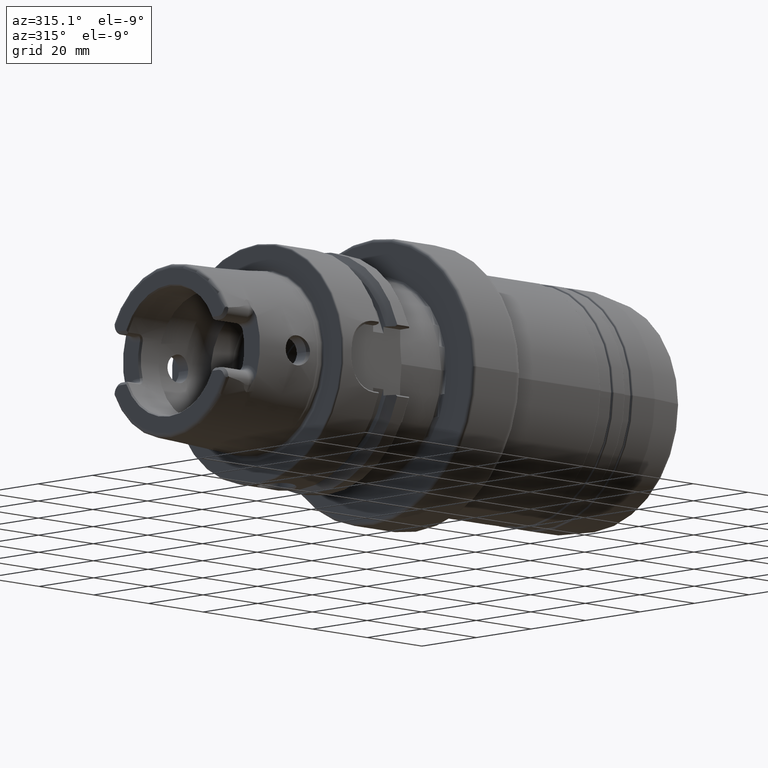
[diagram: clean part render]
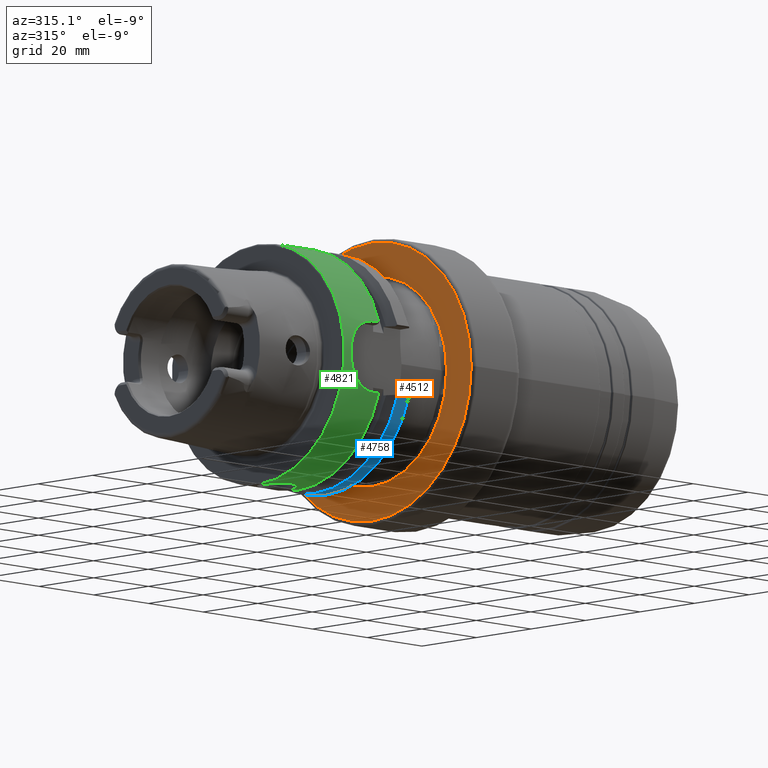
[diagram: same view with three faces highlighted in distinct colors, each labeled with its STEP entity id]
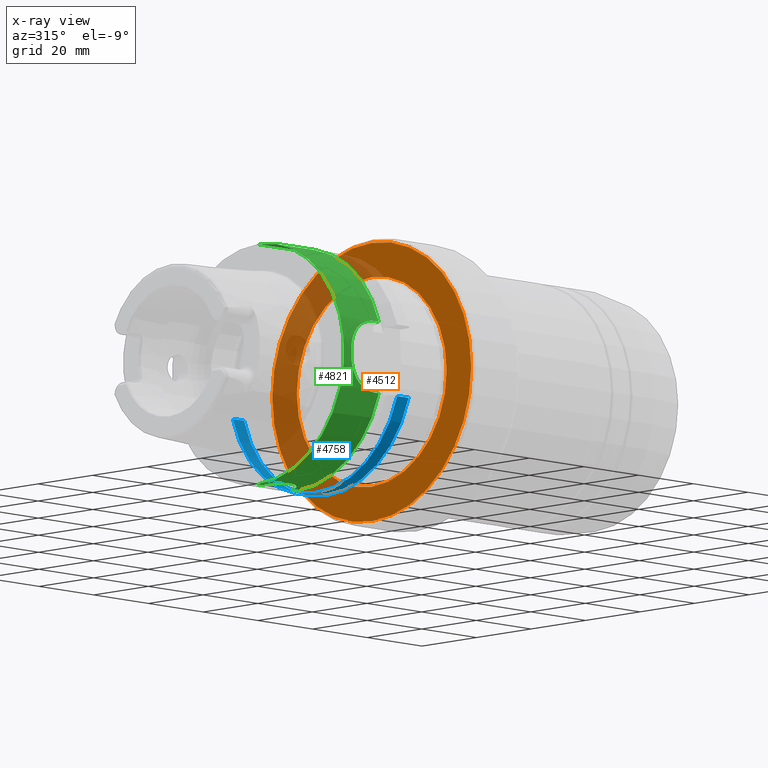
[diagram: x-ray of the same camera — body ghosted, the three highlighted faces saturated]
A machine part, auxiliary view with three faces highlighted in distinct colors.
The next image is the same camera in x-ray (body ghosted, the three faces saturated) — at least one of them is partly hidden behind the body in this view.
Their STEP definitions:

[orange] entity #4512 — the highlighted planar face has unit normal (1, 0, 0).
#759=CARTESIAN_POINT('',(1.653622047244E0,0.E0,0.E0));
#760=DIRECTION('',(-1.E0,0.E0,0.E0));
#761=DIRECTION('',(0.E0,1.E0,0.E0));
#762=AXIS2_PLACEMENT_3D('',#759,#760,#761);
#764=CARTESIAN_POINT('',(1.653622047244E0,0.E0,0.E0));
#765=DIRECTION('',(-1.E0,0.E0,0.E0));
#766=DIRECTION('',(0.E0,-1.E0,0.E0));
#767=AXIS2_PLACEMENT_3D('',#764,#765,#766);
#769=CARTESIAN_POINT('',(1.653622047244E0,0.E0,0.E0));
#770=DIRECTION('',(1.E0,0.E0,0.E0));
#771=DIRECTION('',(0.E0,-1.E0,0.E0));
#772=AXIS2_PLACEMENT_3D('',#769,#770,#771);
#774=CARTESIAN_POINT('',(1.653622047244E0,0.E0,0.E0));
#775=DIRECTION('',(1.E0,0.E0,0.E0));
#776=DIRECTION('',(0.E0,1.E0,0.E0));
#777=AXIS2_PLACEMENT_3D('',#774,#775,#776);
#3498=CARTESIAN_POINT('',(1.653622047244E0,1.082E0,0.E0));
#3499=CARTESIAN_POINT('',(1.653622047244E0,-1.082E0,0.E0));
#3500=VERTEX_POINT('',#3498);
#3501=VERTEX_POINT('',#3499);
#3510=CARTESIAN_POINT('',(1.653622047244E0,-1.437E0,0.E0));
#3511=CARTESIAN_POINT('',(1.653622047244E0,1.437E0,0.E0));
#3512=VERTEX_POINT('',#3510);
#3513=VERTEX_POINT('',#3511);
#4497=CARTESIAN_POINT('',(1.653622047244E0,0.E0,0.E0));
#4498=DIRECTION('',(1.E0,0.E0,0.E0));
#4499=DIRECTION('',(0.E0,-1.E0,0.E0));
#4500=AXIS2_PLACEMENT_3D('',#4497,#4498,#4499);
#4501=PLANE('',#4500);
#4502=ORIENTED_EDGE('',*,*,#4491,.T.);
#4503=ORIENTED_EDGE('',*,*,#4477,.T.);
#4504=EDGE_LOOP('',(#4502,#4503));
#4505=FACE_OUTER_BOUND('',#4504,.F.);
#4507=ORIENTED_EDGE('',*,*,#4506,.T.);
#4509=ORIENTED_EDGE('',*,*,#4508,.T.);
#4510=EDGE_LOOP('',(#4507,#4509));
#4511=FACE_BOUND('',#4510,.F.);
#4512=ADVANCED_FACE('',(#4505,#4511),#4501,.F.);
#763=CIRCLE('',#762,1.082E0);
#768=CIRCLE('',#767,1.082E0);
#773=CIRCLE('',#772,1.437E0);
#778=CIRCLE('',#777,1.437E0);
#4477=EDGE_CURVE('',#3513,#3512,#778,.T.);
#4491=EDGE_CURVE('',#3512,#3513,#773,.T.);
#4506=EDGE_CURVE('',#3500,#3501,#763,.T.);
#4508=EDGE_CURVE('',#3501,#3500,#768,.T.);

[blue] entity #4758 — the highlighted cylindrical surface (partial cylindrical patch) has radius 31.5 mm, axis along (1, 0, 0).
#916=CARTESIAN_POINT('',(1.003937007874E0,-1.183982137824E0,
-3.690215079028E-1));
#925=DIRECTION('',(1.E0,0.E0,0.E0));
#926=VECTOR('',#925,1.623031868470E-1);
#927=CARTESIAN_POINT('',(8.416338210270E-1,1.193014587568E0,
-3.386838789065E-1));
#928=LINE('',#927,#926);
#929=DIRECTION('',(1.E0,0.E0,0.E0));
#930=VECTOR('',#929,1.623031868470E-1);
#931=CARTESIAN_POINT('',(8.416338210270E-1,-1.183982137824E0,
-3.690215079028E-1));
#932=LINE('',#931,#930);
#1046=CARTESIAN_POINT('',(1.003937007874E0,0.E0,0.E0));
#1047=DIRECTION('',(-1.E0,0.E0,0.E0));
#1048=DIRECTION('',(0.E0,9.619863658485E-1,-2.730974769596E-1));
#1049=AXIS2_PLACEMENT_3D('',#1046,#1047,#1048);
#2534=CARTESIAN_POINT('',(8.416338210270E-1,1.193014587568E0,
-3.386838789065E-1));
#2564=CARTESIAN_POINT('',(8.416338210270E-1,-1.183982137824E0,
-3.690215079028E-1));
#2566=CARTESIAN_POINT('',(8.416338210270E-1,0.E0,0.E0));
#2567=DIRECTION('',(1.E0,0.E0,0.E0));
#2568=DIRECTION('',(0.E0,-9.547030571660E-1,-2.975602000232E-1));
#2569=AXIS2_PLACEMENT_3D('',#2566,#2567,#2568);
#3268=VERTEX_POINT('',#2564);
#3290=VERTEX_POINT('',#2534);
#3304=VERTEX_POINT('',#916);
#3314=CARTESIAN_POINT('',(1.003937007874E0,1.193014587568E0,
-3.386838789065E-1));
#3315=VERTEX_POINT('',#3314);
#4744=CARTESIAN_POINT('',(0.E0,0.E0,0.E0));
#4745=DIRECTION('',(1.E0,0.E0,0.E0));
#4746=DIRECTION('',(0.E0,0.E0,1.E0));
#4747=AXIS2_PLACEMENT_3D('',#4744,#4745,#4746);
#4748=CYLINDRICAL_SURFACE('',#4747,1.240157480315E0);
#4750=ORIENTED_EDGE('',*,*,#4749,.F.);
#4752=ORIENTED_EDGE('',*,*,#4751,.F.);
#4754=ORIENTED_EDGE('',*,*,#4753,.F.);
#4755=ORIENTED_EDGE('',*,*,#4736,.T.);
#4756=EDGE_LOOP('',(#4750,#4752,#4754,#4755));
#4757=FACE_OUTER_BOUND('',#4756,.F.);
#4758=ADVANCED_FACE('',(#4757),#4748,.T.);
#1050=CIRCLE('',#1049,1.240157480315E0);
#2570=CIRCLE('',#2569,1.240157480315E0);
#4736=EDGE_CURVE('',#3268,#3304,#932,.T.);
#4749=EDGE_CURVE('',#3315,#3304,#1050,.T.);
#4751=EDGE_CURVE('',#3290,#3315,#928,.T.);
#4753=EDGE_CURVE('',#3268,#3290,#2570,.T.);

[green] entity #4821 — the highlighted cylindrical surface (partial cylindrical patch) has radius 31.5 mm, axis along (1, 0, 0).
#949=CARTESIAN_POINT('',(1.968503937008E-2,0.E0,0.E0));
#950=DIRECTION('',(-1.E0,0.E0,0.E0));
#951=DIRECTION('',(0.E0,0.E0,-1.E0));
#952=AXIS2_PLACEMENT_3D('',#949,#950,#951);
#954=DIRECTION('',(-1.E0,-1.100747094611E-12,0.E0));
#955=VECTOR('',#954,5.560039726207E-1);
#956=CARTESIAN_POINT('',(5.756890119908E-1,0.E0,1.240157480315E0));
#957=LINE('',#956,#955);
#958=CARTESIAN_POINT('',(5.756890119908E-1,0.E0,0.E0));
#959=DIRECTION('',(1.E0,0.E0,0.E0));
#960=DIRECTION('',(0.E0,0.E0,1.E0));
#961=AXIS2_PLACEMENT_3D('',#958,#959,#960);
#963=DIRECTION('',(1.E0,0.E0,0.E0));
#964=VECTOR('',#963,6.387798836877E-2);
#965=CARTESIAN_POINT('',(5.118110236220E-1,-1.183982137824E0,
3.690215079028E-1));
#966=LINE('',#965,#964);
#967=CARTESIAN_POINT('',(1.266093313834E-1,-1.239532400900E0,
3.937007874016E-2));
#968=CARTESIAN_POINT('',(1.271523412197E-1,-1.238989391064E0,
5.646626720817E-2));
#969=CARTESIAN_POINT('',(1.311545055955E-1,-1.237229055471E0,
8.979145086367E-2));
#970=CARTESIAN_POINT('',(1.452660556986E-1,-1.232778865388E0,
1.377231134544E-1));
#971=CARTESIAN_POINT('',(1.663252413423E-1,-1.227001882055E0,
1.818198174720E-1));
#972=CARTESIAN_POINT('',(1.932766585167E-1,-1.220369812870E0,
2.217542771610E-1));
#973=CARTESIAN_POINT('',(2.249143992296E-1,-1.213400927104E0,
2.569473042150E-1));
#974=CARTESIAN_POINT('',(2.602522640166E-1,-1.206537526955E0,
2.872777746160E-1));
#975=CARTESIAN_POINT('',(2.980893010050E-1,-1.200206876013E0,
3.125358270083E-1));
#976=CARTESIAN_POINT('',(3.380494495445E-1,-1.194637017641E0,
3.330941475910E-1));
#977=CARTESIAN_POINT('',(3.797447793567E-1,-1.190043145170E0,
3.490772152703E-1));
#978=CARTESIAN_POINT('',(4.228787552399E-1,-1.186601437098E0,
3.605513349774E-1));
#979=CARTESIAN_POINT('',(4.670461887655E-1,-1.184467126173E0,
3.674707367066E-1));
#980=CARTESIAN_POINT('',(4.968151342743E-1,-1.183982137824E0,
3.690215079028E-1));
#981=CARTESIAN_POINT('',(5.118110236220E-1,-1.183982137824E0,
3.690215079028E-1));
#983=CARTESIAN_POINT('',(1.266093313834E-1,-1.239532400900E0,
3.937007874016E-2));
#984=CARTESIAN_POINT('',(1.257756820175E-1,-1.240366050266E0,
1.312335958005E-2));
#985=CARTESIAN_POINT('',(1.257756820175E-1,-1.240366050266E0,
-1.312335958005E-2));
#986=CARTESIAN_POINT('',(1.266093313834E-1,-1.239532400900E0,
-3.937007874016E-2));
#988=CARTESIAN_POINT('',(5.118110236221E-1,-1.183982137824E0,
-3.690215079028E-1));
#989=CARTESIAN_POINT('',(4.967928582969E-1,-1.183982137824E0,
-3.690215079028E-1));
#990=CARTESIAN_POINT('',(4.669516022808E-1,-1.184468086789E0,
-3.674677415896E-1));
#991=CARTESIAN_POINT('',(4.225284368129E-1,-1.186621118620E0,
-3.604873701025E-1));
#992=CARTESIAN_POINT('',(3.791834888812E-1,-1.190095126097E0,
-3.489017001192E-1));
#993=CARTESIAN_POINT('',(3.374576335198E-1,-1.194711948219E0,
-3.328261251371E-1));
#994=CARTESIAN_POINT('',(2.977218098858E-1,-1.200266066751E0,
-3.123055946161E-1));
#995=CARTESIAN_POINT('',(2.602173636683E-1,-1.206546844626E0,
-2.872303083746E-1));
#996=CARTESIAN_POINT('',(2.251789898450E-1,-1.213348187392E0,
-2.571832088760E-1));
#997=CARTESIAN_POINT('',(1.936509457741E-1,-1.220282871736E0,
-2.222246151012E-1));
#998=CARTESIAN_POINT('',(1.665850179922E-1,-1.226933431803E0,
-1.822898392057E-1));
#999=CARTESIAN_POINT('',(1.453544897445E-1,-1.232751606227E0,
-1.379975796920E-1));
#1000=CARTESIAN_POINT('',(1.311481756973E-1,-1.237230085730E0,
-8.980858589035E-2));
#1001=CARTESIAN_POINT('',(1.271520599033E-1,-1.238989672380E0,
-5.645741020695E-2));
#1002=CARTESIAN_POINT('',(1.266093313834E-1,-1.239532400900E0,
-3.937007874016E-2));
#1004=DIRECTION('',(1.E0,0.E0,0.E0));
#1005=VECTOR('',#1004,6.387798836876E-2);
#1006=CARTESIAN_POINT('',(5.118110236221E-1,-1.183982137824E0,
-3.690215079028E-1));
#1007=LINE('',#1006,#1005);
#1008=CARTESIAN_POINT('',(5.756890119908E-1,0.E0,0.E0));
#1009=DIRECTION('',(1.E0,0.E0,0.E0));
#1010=DIRECTION('',(0.E0,-9.547030571660E-1,-2.975602000232E-1));
#1011=AXIS2_PLACEMENT_3D('',#1008,#1009,#1010);
#1013=DIRECTION('',(-1.E0,0.E0,0.E0));
#1014=VECTOR('',#1013,8.356302773885E-2);
#1015=CARTESIAN_POINT('',(5.756890119908E-1,0.E0,-1.240157480315E0));
#1016=LINE('',#1015,#1014);
#1017=CARTESIAN_POINT('',(5.905511811024E-2,0.E0,-1.240157480315E0));
#1018=CARTESIAN_POINT('',(5.905511811024E-2,-1.413155073426E-2,
-1.240157480315E0));
#1019=CARTESIAN_POINT('',(6.225044755524E-2,-4.128530174972E-2,
-1.239677966111E0));
#1020=CARTESIAN_POINT('',(7.522060753438E-2,-7.899907155362E-2,
-1.237811303450E0));
#1021=CARTESIAN_POINT('',(9.511332825014E-2,-1.126554630572E-1,
-1.235167305896E0));
#1022=CARTESIAN_POINT('',(1.217761083984E-1,-1.425745645688E-1,
-1.232039964859E0));
#1023=CARTESIAN_POINT('',(1.548281601308E-1,-1.676967648588E-1,
-1.228834527004E0));
#1024=CARTESIAN_POINT('',(1.932282651112E-1,-1.865632570189E-1,
-1.226075050840E0));
#1025=CARTESIAN_POINT('',(2.338787438171E-1,-1.977721057905E-1,
-1.224292479960E0));
#1026=CARTESIAN_POINT('',(2.757134364200E-1,-2.015143100015E-1,
-1.223674676554E0));
#1027=CARTESIAN_POINT('',(3.175241708513E-1,-1.977288771898E-1,
-1.224299532032E0));
#1028=CARTESIAN_POINT('',(3.581100235467E-1,-1.865014069128E-1,
-1.226084517942E0));
#1029=CARTESIAN_POINT('',(3.965105522951E-1,-1.676040933694E-1,
-1.228847513783E0));
#1030=CARTESIAN_POINT('',(4.296059383455E-1,-1.423972178440E-1,
-1.232061232064E0));
#1031=CARTESIAN_POINT('',(4.562676773414E-1,-1.123860153180E-1,
-1.235192474817E0));
#1032=CARTESIAN_POINT('',(4.760907439669E-1,-7.870599227243E-2,
-1.237829633586E0));
#1033=CARTESIAN_POINT('',(4.889643276607E-1,-4.108742031744E-2,
-1.239683054828E0));
#1034=CARTESIAN_POINT('',(4.921259842520E-1,-1.405473492802E-2,
-1.240157480315E0));
#1035=CARTESIAN_POINT('',(4.921259842520E-1,0.E0,-1.240157480315E0));
#1037=DIRECTION('',(-1.E0,-3.347235667743E-12,0.E0));
#1038=VECTOR('',#1037,3.937007874016E-2);
#1039=CARTESIAN_POINT('',(5.905511811024E-2,0.E0,-1.240157480315E0));
#1040=LINE('',#1039,#1038);
#1073=CARTESIAN_POINT('',(4.921259842520E-1,0.E0,-1.240157480315E0));
#1091=CARTESIAN_POINT('',(5.905511811024E-2,0.E0,-1.240157480315E0));
#3101=CARTESIAN_POINT('',(5.756890119908E-1,0.E0,1.240157480315E0));
#3102=VERTEX_POINT('',#3101);
#3222=VERTEX_POINT('',#1073);
#3223=VERTEX_POINT('',#1091);
#3232=CARTESIAN_POINT('',(5.756890119908E-1,0.E0,-1.240157480315E0));
#3233=VERTEX_POINT('',#3232);
#3256=CARTESIAN_POINT('',(5.118110236221E-1,-1.183982137824E0,
-3.690215079028E-1));
#3257=CARTESIAN_POINT('',(5.756890119908E-1,-1.183982137824E0,
-3.690215079028E-1));
#3258=VERTEX_POINT('',#3256);
#3259=VERTEX_POINT('',#3257);
#3260=VERTEX_POINT('',#1002);
#3261=VERTEX_POINT('',#983);
#3262=VERTEX_POINT('',#981);
#3263=CARTESIAN_POINT('',(5.756890119908E-1,-1.183982137824E0,
3.690215079028E-1));
#3264=VERTEX_POINT('',#3263);
#3300=CARTESIAN_POINT('',(1.968503937008E-2,0.E0,1.240157480315E0));
#3301=CARTESIAN_POINT('',(1.968503937008E-2,0.E0,-1.240157480315E0));
#3302=VERTEX_POINT('',#3300);
#3303=VERTEX_POINT('',#3301);
#4791=CARTESIAN_POINT('',(0.E0,0.E0,0.E0));
#4792=DIRECTION('',(1.E0,0.E0,0.E0));
#4793=DIRECTION('',(0.E0,0.E0,1.E0));
#4794=AXIS2_PLACEMENT_3D('',#4791,#4792,#4793);
#4795=CYLINDRICAL_SURFACE('',#4794,1.240157480315E0);
#4797=ORIENTED_EDGE('',*,*,#4796,.T.);
#4799=ORIENTED_EDGE('',*,*,#4798,.F.);
#4801=ORIENTED_EDGE('',*,*,#4800,.T.);
#4803=ORIENTED_EDGE('',*,*,#4802,.F.);
#4805=ORIENTED_EDGE('',*,*,#4804,.F.);
#4807=ORIENTED_EDGE('',*,*,#4806,.T.);
#4809=ORIENTED_EDGE('',*,*,#4808,.F.);
#4810=ORIENTED_EDGE('',*,*,#4719,.T.);
#4812=ORIENTED_EDGE('',*,*,#4811,.T.);
#4814=ORIENTED_EDGE('',*,*,#4813,.T.);
#4816=ORIENTED_EDGE('',*,*,#4815,.F.);
#4818=ORIENTED_EDGE('',*,*,#4817,.T.);
#4819=EDGE_LOOP('',(#4797,#4799,#4801,#4803,#4805,#4807,#4809,#4810,#4812,#4814,
#4816,#4818));
#4820=FACE_OUTER_BOUND('',#4819,.F.);
#4821=ADVANCED_FACE('',(#4820),#4795,.T.);
#953=CIRCLE('',#952,1.240157480315E0);
#962=CIRCLE('',#961,1.240157480315E0);
#982=B_SPLINE_CURVE_WITH_KNOTS('',3,(#967,#968,#969,#970,#971,#972,#973,#974,
#975,#976,#977,#978,#979,#980,#981),.UNSPECIFIED.,.F.,.F.,(4,1,1,1,1,1,1,1,1,1,
1,1,4),(0.E0,8.333333333333E-2,1.666666666667E-1,2.5E-1,3.333333333333E-1,
4.166666666667E-1,5.E-1,5.833333333333E-1,6.666666666667E-1,7.5E-1,
8.333333333333E-1,9.166666666667E-1,1.E0),.UNSPECIFIED.);
#987=B_SPLINE_CURVE_WITH_KNOTS('',3,(#983,#984,#985,#986),.UNSPECIFIED.,.F.,.F.,
(4,4),(0.E0,1.E0),.UNSPECIFIED.);
#1003=B_SPLINE_CURVE_WITH_KNOTS('',3,(#988,#989,#990,#991,#992,#993,#994,#995,
#996,#997,#998,#999,#1000,#1001,#1002),.UNSPECIFIED.,.F.,.F.,(4,1,1,1,1,1,1,1,1,
1,1,1,4),(0.E0,8.333333333333E-2,1.666666666667E-1,2.5E-1,3.333333333333E-1,
4.166666666667E-1,5.E-1,5.833333333333E-1,6.666666666667E-1,7.5E-1,
8.333333333333E-1,9.166666666667E-1,1.E0),.UNSPECIFIED.);
#1012=CIRCLE('',#1011,1.240157480315E0);
#1036=B_SPLINE_CURVE_WITH_KNOTS('',3,(#1017,#1018,#1019,#1020,#1021,#1022,#1023,
#1024,#1025,#1026,#1027,#1028,#1029,#1030,#1031,#1032,#1033,#1034,#1035),
.UNSPECIFIED.,.F.,.F.,(4,1,1,1,1,1,1,1,1,1,1,1,1,1,1,1,4),(0.E0,6.25E-2,1.25E-1,
1.875E-1,2.5E-1,3.125E-1,3.75E-1,4.375E-1,5.E-1,5.625E-1,6.25E-1,6.875E-1,
7.5E-1,8.125E-1,8.75E-1,9.375E-1,1.E0),.UNSPECIFIED.);
#4719=EDGE_CURVE('',#3258,#3259,#1007,.T.);
#4796=EDGE_CURVE('',#3303,#3302,#953,.T.);
#4798=EDGE_CURVE('',#3102,#3302,#957,.T.);
#4800=EDGE_CURVE('',#3102,#3264,#962,.T.);
#4802=EDGE_CURVE('',#3262,#3264,#966,.T.);
#4804=EDGE_CURVE('',#3261,#3262,#982,.T.);
#4806=EDGE_CURVE('',#3261,#3260,#987,.T.);
#4808=EDGE_CURVE('',#3258,#3260,#1003,.T.);
#4811=EDGE_CURVE('',#3259,#3233,#1012,.T.);
#4813=EDGE_CURVE('',#3233,#3222,#1016,.T.);
#4815=EDGE_CURVE('',#3223,#3222,#1036,.T.);
#4817=EDGE_CURVE('',#3223,#3303,#1040,.T.);